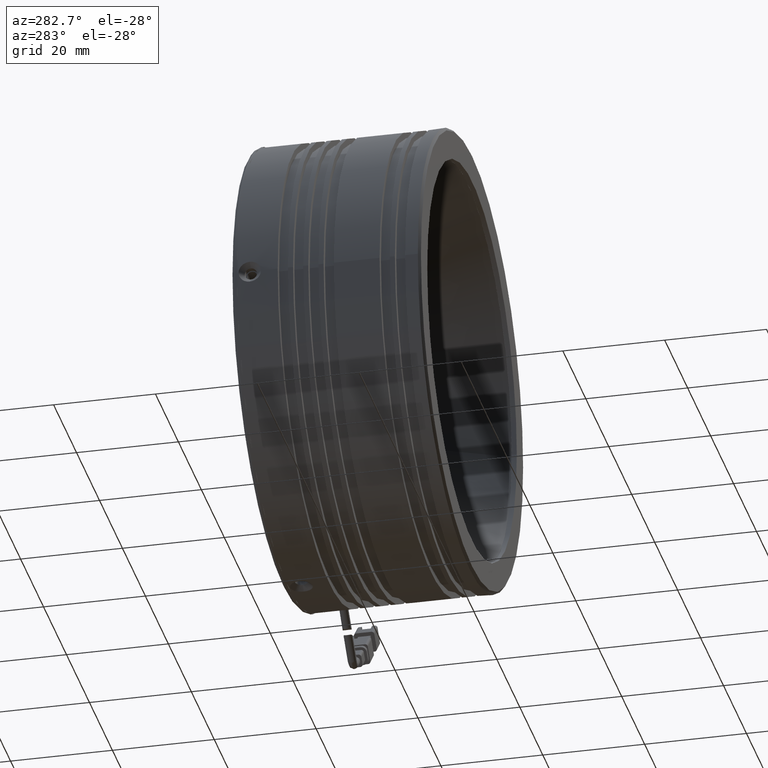
[diagram: clean part render]
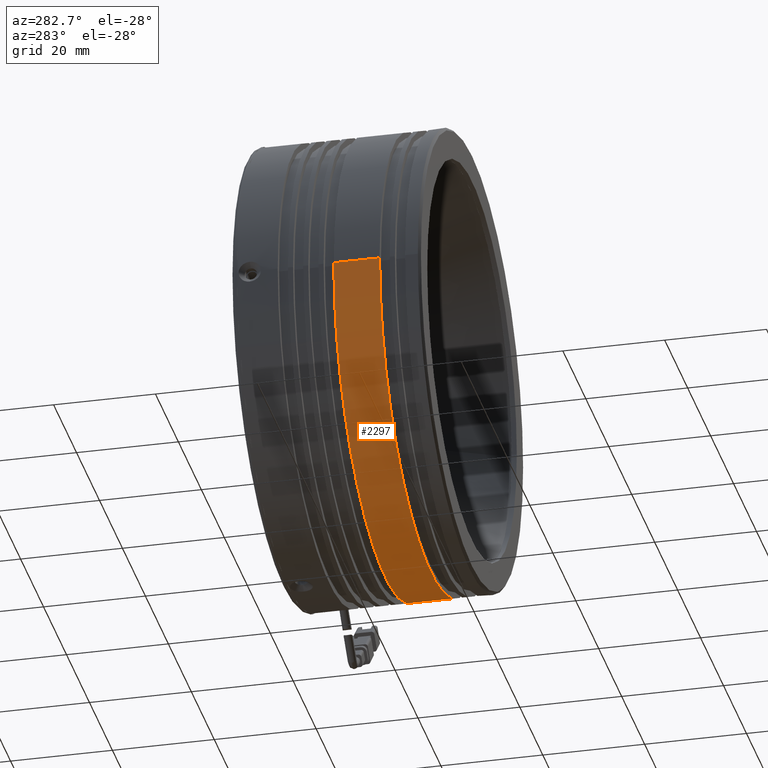
[diagram: same view with one face highlighted and labeled with its STEP entity id]
A machine part, auxiliary view. The second image highlights one B-rep face of the part: STEP entity #2297.
In plain terms, the highlighted cylindrical surface (partial cylindrical patch) has radius 45 mm, axis along (-0, -1, 0).
Its self-contained STEP definition (entity closure, byte-faithful):
#1177 = EDGE_LOOP ( 'NONE', ( #11942, #7443, #1327, #3472 ) ) ;
#1327 = ORIENTED_EDGE ( 'NONE', *, *, #3045, .T. ) ;
#1493 = CARTESIAN_POINT ( 'NONE',  ( -58.35553552304119100, -14.63393662020662200, -4.519091264393308100E-013 ) ) ;
#1527 = DIRECTION ( 'NONE',  ( 0.0000000000000000000, 1.000000000000000000, -0.0000000000000000000 ) ) ;
#1570 = VECTOR ( 'NONE', #4873, 1000.000000000000000 ) ;
#1580 = CARTESIAN_POINT ( 'NONE',  ( -13.35553552304124700, -5.633936620206641900, 1.271920936629652900E-014 ) ) ;
#1838 = CARTESIAN_POINT ( 'NONE',  ( -13.35553552304124700, -50.09547878573967900, 1.271920936629652900E-014 ) ) ;
#1869 = LINE ( 'NONE', #6693, #1570 ) ;
#2297 = ADVANCED_FACE ( 'NONE', ( #3343 ), #10152, .T. ) ;
#2420 = DIRECTION ( 'NONE',  ( -0.0000000000000000000, -1.000000000000000000, 0.0000000000000000000 ) ) ;
#2538 = DIRECTION ( 'NONE',  ( -1.000000000000000000, 0.0000000000000000000, -1.032507412901395300E-014 ) ) ;
#2665 = DIRECTION ( 'NONE',  ( -1.000000000000000000, 0.0000000000000000000, -1.032507412901395300E-014 ) ) ;
#2694 = VERTEX_POINT ( 'NONE', #6514 ) ;
#3045 = EDGE_CURVE ( 'NONE', #2694, #11985, #4692, .T. ) ;
#3343 = FACE_OUTER_BOUND ( 'NONE', #1177, .T. ) ;
#3472 = ORIENTED_EDGE ( 'NONE', *, *, #11370, .F. ) ;
#3899 = VERTEX_POINT ( 'NONE', #6097 ) ;
#4234 = AXIS2_PLACEMENT_3D ( 'NONE', #7125, #1527, #8048 ) ;
#4281 = LINE ( 'NONE', #6699, #9189 ) ;
#4692 = CIRCLE ( 'NONE', #4234, 44.99999999999994300 ) ;
#4873 = DIRECTION ( 'NONE',  ( -0.0000000000000000000, -1.000000000000000000, 0.0000000000000000000 ) ) ;
#5176 = CIRCLE ( 'NONE', #6397, 44.99999999999994300 ) ;
#6097 = CARTESIAN_POINT ( 'NONE',  ( -58.35553552304119100, -5.633936620206641900, -4.519091264393308100E-013 ) ) ;
#6397 = AXIS2_PLACEMENT_3D ( 'NONE', #1580, #8103, #2538 ) ;
#6514 = CARTESIAN_POINT ( 'NONE',  ( 31.64446447695870600, -14.63393662020662200, 4.718366345757608500E-013 ) ) ;
#6693 = CARTESIAN_POINT ( 'NONE',  ( 31.64446447695870600, -50.09547878573967900, 4.718366345757608500E-013 ) ) ;
#6699 = CARTESIAN_POINT ( 'NONE',  ( -58.35553552304119100, -50.09547878573967900, -4.519091264393308100E-013 ) ) ;
#7125 = CARTESIAN_POINT ( 'NONE',  ( -13.35553552304124700, -14.63393662020662200, 1.271920936629652900E-014 ) ) ;
#7443 = ORIENTED_EDGE ( 'NONE', *, *, #9874, .T. ) ;
#8048 = DIRECTION ( 'NONE',  ( -1.000000000000000000, 0.0000000000000000000, -1.032507412901395300E-014 ) ) ;
#8103 = DIRECTION ( 'NONE',  ( -0.0000000000000000000, -1.000000000000000000, 0.0000000000000000000 ) ) ;
#9189 = VECTOR ( 'NONE', #9470, 1000.000000000000000 ) ;
#9470 = DIRECTION ( 'NONE',  ( -0.0000000000000000000, -1.000000000000000000, 0.0000000000000000000 ) ) ;
#9874 = EDGE_CURVE ( 'NONE', #11525, #2694, #1869, .T. ) ;
#10152 = CYLINDRICAL_SURFACE ( 'NONE', #11741, 44.99999999999994300 ) ;
#11132 = EDGE_CURVE ( 'NONE', #3899, #11525, #5176, .T. ) ;
#11370 = EDGE_CURVE ( 'NONE', #3899, #11985, #4281, .T. ) ;
#11494 = CARTESIAN_POINT ( 'NONE',  ( 31.64446447695870600, -5.633936620206641900, 4.718366345757608500E-013 ) ) ;
#11525 = VERTEX_POINT ( 'NONE', #11494 ) ;
#11741 = AXIS2_PLACEMENT_3D ( 'NONE', #1838, #2420, #2665 ) ;
#11942 = ORIENTED_EDGE ( 'NONE', *, *, #11132, .T. ) ;
#11985 = VERTEX_POINT ( 'NONE', #1493 ) ;